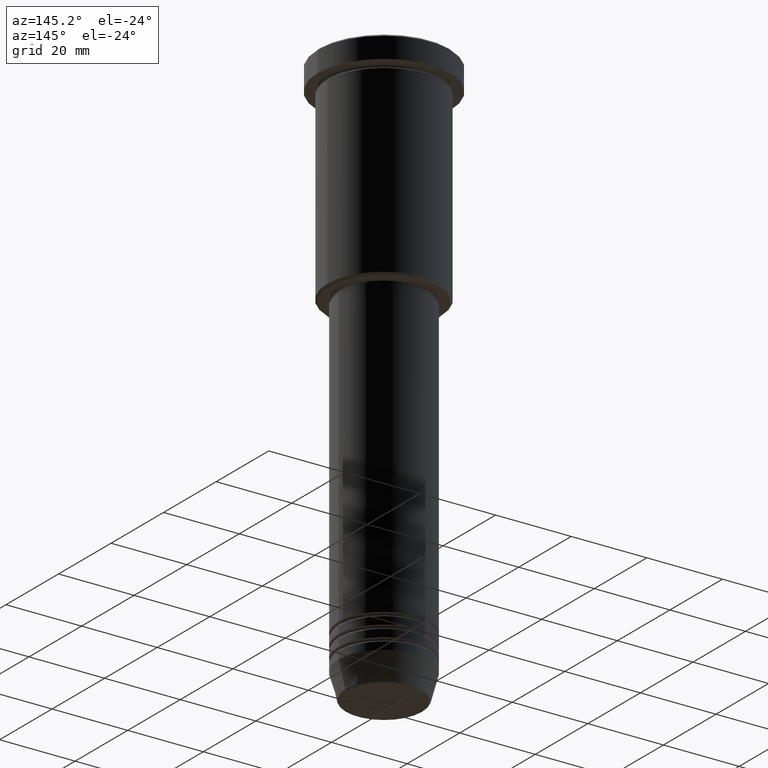
[diagram: clean part render]
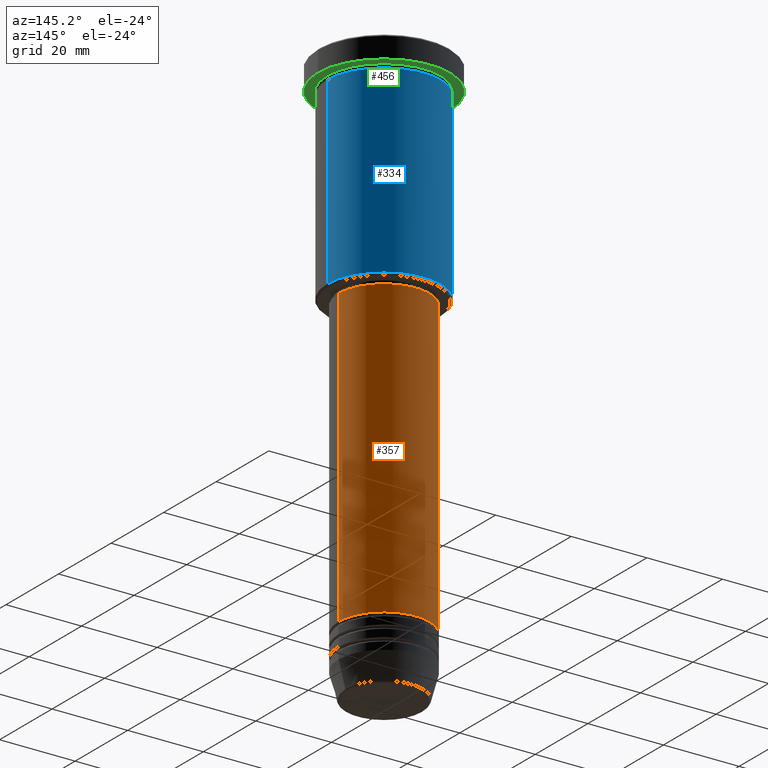
[diagram: same view with three faces highlighted in distinct colors, each labeled with its STEP entity id]
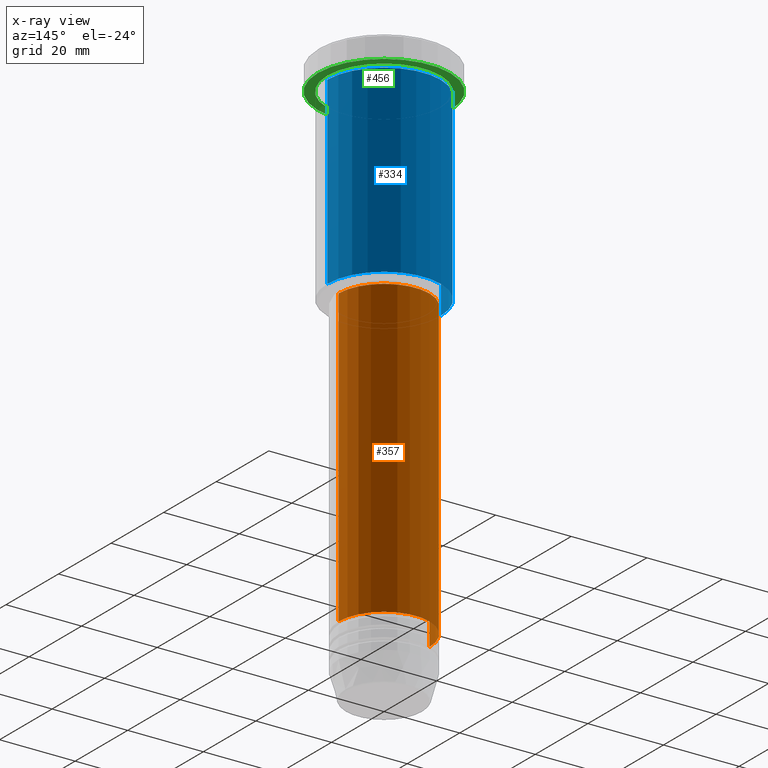
[diagram: x-ray of the same camera — body ghosted, the three highlighted faces saturated]
A machine part, auxiliary view with three faces highlighted in distinct colors.
The next image is the same camera in x-ray (body ghosted, the three faces saturated) — at least one of them is partly hidden behind the body in this view.
Their STEP definitions:

[orange] entity #357 — the highlighted cylindrical surface (partial cylindrical patch) has radius 12 mm, axis along (-0, -0, 1).
#14 = ORIENTED_EDGE ( 'NONE', *, *, #380, .T. ) ;
#26 = VERTEX_POINT ( 'NONE', #306 ) ;
#91 = VERTEX_POINT ( 'NONE', #695 ) ;
#103 = ORIENTED_EDGE ( 'NONE', *, *, #374, .F. ) ;
#114 = CARTESIAN_POINT ( 'NONE',  ( -12.00000000000000000, 1.469576158976823947E-15, 0.000000000000000000 ) ) ;
#179 = CARTESIAN_POINT ( 'NONE',  ( 0.000000000000000000, 0.000000000000000000, 0.000000000000000000 ) ) ;
#194 = AXIS2_PLACEMENT_3D ( 'NONE', #525, #625, #618 ) ;
#213 = AXIS2_PLACEMENT_3D ( 'NONE', #179, #610, #1079 ) ;
#220 = EDGE_LOOP ( 'NONE', ( #14, #367, #103, #702 ) ) ;
#224 = VERTEX_POINT ( 'NONE', #485 ) ;
#284 = LINE ( 'NONE', #114, #387 ) ;
#306 = CARTESIAN_POINT ( 'NONE',  ( -12.00000000000000000, 1.469576158976823947E-15, -57.00000000000001421 ) ) ;
#316 = DIRECTION ( 'NONE',  ( -0.000000000000000000, -0.000000000000000000, 1.000000000000000000 ) ) ;
#357 = ADVANCED_FACE ( 'NONE', ( #999 ), #712, .T. ) ;
#367 = ORIENTED_EDGE ( 'NONE', *, *, #1058, .T. ) ;
#374 = EDGE_CURVE ( 'NONE', #91, #26, #879, .T. ) ;
#380 = EDGE_CURVE ( 'NONE', #224, #946, #1168, .T. ) ;
#387 = VECTOR ( 'NONE', #851, 1000.000000000000000 ) ;
#432 = DIRECTION ( 'NONE',  ( -0.000000000000000000, -0.000000000000000000, 1.000000000000000000 ) ) ;
#457 = VECTOR ( 'NONE', #316, 1000.000000000000000 ) ;
#485 = CARTESIAN_POINT ( 'NONE',  ( 12.00000000000000000, 0.000000000000000000, -134.9999999999999716 ) ) ;
#525 = CARTESIAN_POINT ( 'NONE',  ( 0.000000000000000000, 0.000000000000000000, -57.00000000000001421 ) ) ;
#575 = AXIS2_PLACEMENT_3D ( 'NONE', #815, #432, #898 ) ;
#591 = EDGE_CURVE ( 'NONE', #224, #91, #1145, .T. ) ;
#610 = DIRECTION ( 'NONE',  ( -0.000000000000000000, -0.000000000000000000, 1.000000000000000000 ) ) ;
#618 = DIRECTION ( 'NONE',  ( 1.000000000000000000, 0.000000000000000000, 0.000000000000000000 ) ) ;
#625 = DIRECTION ( 'NONE',  ( -0.000000000000000000, -0.000000000000000000, 1.000000000000000000 ) ) ;
#695 = CARTESIAN_POINT ( 'NONE',  ( 12.00000000000000000, 0.000000000000000000, -57.00000000000001421 ) ) ;
#702 = ORIENTED_EDGE ( 'NONE', *, *, #591, .F. ) ;
#712 = CYLINDRICAL_SURFACE ( 'NONE', #213, 12.00000000000000000 ) ;
#815 = CARTESIAN_POINT ( 'NONE',  ( 0.000000000000000000, 0.000000000000000000, -134.9999999999999716 ) ) ;
#851 = DIRECTION ( 'NONE',  ( -0.000000000000000000, -0.000000000000000000, 1.000000000000000000 ) ) ;
#879 = CIRCLE ( 'NONE', #194, 12.00000000000000000 ) ;
#886 = CARTESIAN_POINT ( 'NONE',  ( -12.00000000000000000, 1.469576158976823947E-15, -134.9999999999999716 ) ) ;
#898 = DIRECTION ( 'NONE',  ( 1.000000000000000000, 0.000000000000000000, 0.000000000000000000 ) ) ;
#946 = VERTEX_POINT ( 'NONE', #886 ) ;
#949 = CARTESIAN_POINT ( 'NONE',  ( 12.00000000000000000, 0.000000000000000000, 0.000000000000000000 ) ) ;
#999 = FACE_OUTER_BOUND ( 'NONE', #220, .T. ) ;
#1058 = EDGE_CURVE ( 'NONE', #946, #26, #284, .T. ) ;
#1079 = DIRECTION ( 'NONE',  ( 1.000000000000000000, 0.000000000000000000, 0.000000000000000000 ) ) ;
#1145 = LINE ( 'NONE', #949, #457 ) ;
#1168 = CIRCLE ( 'NONE', #575, 12.00000000000000000 ) ;

[blue] entity #334 — the highlighted cylindrical surface (partial cylindrical patch) has radius 15 mm, axis along (-0, -0, 1).
#1 = EDGE_CURVE ( 'NONE', #453, #461, #513, .T. ) ;
#22 = LINE ( 'NONE', #1001, #475 ) ;
#79 = CARTESIAN_POINT ( 'NONE',  ( 15.00000000000000000, 0.000000000000000000, -55.49999999999996447 ) ) ;
#105 = CARTESIAN_POINT ( 'NONE',  ( -15.00000000000000000, 1.836970198721029589E-15, 0.000000000000000000 ) ) ;
#115 = DIRECTION ( 'NONE',  ( -0.000000000000000000, -0.000000000000000000, 1.000000000000000000 ) ) ;
#170 = DIRECTION ( 'NONE',  ( -0.000000000000000000, -0.000000000000000000, 1.000000000000000000 ) ) ;
#175 = FACE_OUTER_BOUND ( 'NONE', #227, .T. ) ;
#178 = VERTEX_POINT ( 'NONE', #755 ) ;
#193 = DIRECTION ( 'NONE',  ( -0.000000000000000000, -0.000000000000000000, 1.000000000000000000 ) ) ;
#227 = EDGE_LOOP ( 'NONE', ( #419, #310, #893, #500 ) ) ;
#310 = ORIENTED_EDGE ( 'NONE', *, *, #1098, .T. ) ;
#333 = DIRECTION ( 'NONE',  ( -1.000000000000000000, 0.000000000000000000, 0.000000000000000000 ) ) ;
#334 = ADVANCED_FACE ( 'NONE', ( #175 ), #532, .T. ) ;
#381 = DIRECTION ( 'NONE',  ( -0.000000000000000000, -0.000000000000000000, 1.000000000000000000 ) ) ;
#406 = CIRCLE ( 'NONE', #423, 15.00000000000000000 ) ;
#419 = ORIENTED_EDGE ( 'NONE', *, *, #955, .T. ) ;
#423 = AXIS2_PLACEMENT_3D ( 'NONE', #799, #524, #333 ) ;
#443 = DIRECTION ( 'NONE',  ( 1.000000000000000000, 0.000000000000000000, 0.000000000000000000 ) ) ;
#453 = VERTEX_POINT ( 'NONE', #1104 ) ;
#458 = CARTESIAN_POINT ( 'NONE',  ( -15.00000000000000000, 1.836970198721029589E-15, -6.999999999999995559 ) ) ;
#461 = VERTEX_POINT ( 'NONE', #458 ) ;
#470 = DIRECTION ( 'NONE',  ( 1.000000000000000000, 0.000000000000000000, 0.000000000000000000 ) ) ;
#474 = AXIS2_PLACEMENT_3D ( 'NONE', #592, #115, #470 ) ;
#475 = VECTOR ( 'NONE', #193, 1000.000000000000000 ) ;
#500 = ORIENTED_EDGE ( 'NONE', *, *, #531, .F. ) ;
#513 = CIRCLE ( 'NONE', #474, 15.00000000000000000 ) ;
#524 = DIRECTION ( 'NONE',  ( -0.000000000000000000, -0.000000000000000000, 1.000000000000000000 ) ) ;
#531 = EDGE_CURVE ( 'NONE', #783, #453, #22, .T. ) ;
#532 = CYLINDRICAL_SURFACE ( 'NONE', #780, 15.00000000000000000 ) ;
#592 = CARTESIAN_POINT ( 'NONE',  ( 0.000000000000000000, 0.000000000000000000, -6.999999999999995559 ) ) ;
#755 = CARTESIAN_POINT ( 'NONE',  ( -15.00000000000000000, 1.836970198721029589E-15, -55.49999999999996447 ) ) ;
#780 = AXIS2_PLACEMENT_3D ( 'NONE', #808, #170, #443 ) ;
#783 = VERTEX_POINT ( 'NONE', #79 ) ;
#799 = CARTESIAN_POINT ( 'NONE',  ( 0.000000000000000000, 0.000000000000000000, -55.49999999999996447 ) ) ;
#808 = CARTESIAN_POINT ( 'NONE',  ( 0.000000000000000000, 0.000000000000000000, 0.000000000000000000 ) ) ;
#893 = ORIENTED_EDGE ( 'NONE', *, *, #1, .F. ) ;
#955 = EDGE_CURVE ( 'NONE', #783, #178, #406, .T. ) ;
#1001 = CARTESIAN_POINT ( 'NONE',  ( 15.00000000000000000, 0.000000000000000000, 0.000000000000000000 ) ) ;
#1098 = EDGE_CURVE ( 'NONE', #178, #461, #1108, .T. ) ;
#1104 = CARTESIAN_POINT ( 'NONE',  ( 15.00000000000000000, 0.000000000000000000, -6.999999999999995559 ) ) ;
#1108 = LINE ( 'NONE', #105, #1133 ) ;
#1133 = VECTOR ( 'NONE', #381, 1000.000000000000000 ) ;

[green] entity #456 — the highlighted planar face has unit normal (0, 0, -1).
#58 = VERTEX_POINT ( 'NONE', #753 ) ;
#61 = AXIS2_PLACEMENT_3D ( 'NONE', #502, #1136, #152 ) ;
#66 = CIRCLE ( 'NONE', #1173, 15.00000000000000000 ) ;
#70 = ORIENTED_EDGE ( 'NONE', *, *, #304, .F. ) ;
#81 = AXIS2_PLACEMENT_3D ( 'NONE', #319, #983, #430 ) ;
#121 = CIRCLE ( 'NONE', #139, 17.50000000000000000 ) ;
#139 = AXIS2_PLACEMENT_3D ( 'NONE', #740, #1115, #654 ) ;
#152 = DIRECTION ( 'NONE',  ( 1.000000000000000000, 0.000000000000000000, 0.000000000000000000 ) ) ;
#181 = ORIENTED_EDGE ( 'NONE', *, *, #737, .T. ) ;
#197 = CARTESIAN_POINT ( 'NONE',  ( -15.00000000000000000, 0.000000000000000000, -5.999999999999994671 ) ) ;
#210 = DIRECTION ( 'NONE',  ( -1.000000000000000000, 0.000000000000000000, -0.000000000000000000 ) ) ;
#257 = DIRECTION ( 'NONE',  ( -0.000000000000000000, -0.000000000000000000, 1.000000000000000000 ) ) ;
#259 = EDGE_LOOP ( 'NONE', ( #181, #433 ) ) ;
#286 = DIRECTION ( 'NONE',  ( 0.000000000000000000, 0.000000000000000000, -1.000000000000000000 ) ) ;
#304 = EDGE_CURVE ( 'NONE', #58, #971, #1148, .T. ) ;
#319 = CARTESIAN_POINT ( 'NONE',  ( 0.000000000000000000, 0.000000000000000000, -5.999999999999995559 ) ) ;
#430 = DIRECTION ( 'NONE',  ( -1.000000000000000000, 0.000000000000000000, 0.000000000000000000 ) ) ;
#433 = ORIENTED_EDGE ( 'NONE', *, *, #1015, .T. ) ;
#456 = ADVANCED_FACE ( 'NONE', ( #732, #1096 ), #829, .T. ) ;
#502 = CARTESIAN_POINT ( 'NONE',  ( 0.000000000000000000, 0.000000000000000000, -5.999999999999995559 ) ) ;
#561 = EDGE_LOOP ( 'NONE', ( #1105, #70 ) ) ;
#593 = AXIS2_PLACEMENT_3D ( 'NONE', #746, #286, #210 ) ;
#617 = DIRECTION ( 'NONE',  ( -1.000000000000000000, 0.000000000000000000, 0.000000000000000000 ) ) ;
#654 = DIRECTION ( 'NONE',  ( 1.000000000000000000, 0.000000000000000000, 0.000000000000000000 ) ) ;
#732 = FACE_BOUND ( 'NONE', #259, .T. ) ;
#737 = EDGE_CURVE ( 'NONE', #881, #1157, #1090, .T. ) ;
#740 = CARTESIAN_POINT ( 'NONE',  ( 0.000000000000000000, 0.000000000000000000, -5.999999999999995559 ) ) ;
#746 = CARTESIAN_POINT ( 'NONE',  ( 0.000000000000000000, 17.50000000000000000, -5.999999999999995559 ) ) ;
#753 = CARTESIAN_POINT ( 'NONE',  ( -17.50000000000000000, 2.143131898507868248E-15, -5.999999999999995559 ) ) ;
#829 = PLANE ( 'NONE',  #593 ) ;
#881 = VERTEX_POINT ( 'NONE', #197 ) ;
#968 = CARTESIAN_POINT ( 'NONE',  ( 15.00000000000000000, 1.836970198721029589E-15, -5.999999999999994671 ) ) ;
#971 = VERTEX_POINT ( 'NONE', #1154 ) ;
#983 = DIRECTION ( 'NONE',  ( -0.000000000000000000, -0.000000000000000000, 1.000000000000000000 ) ) ;
#1015 = EDGE_CURVE ( 'NONE', #1157, #881, #66, .T. ) ;
#1070 = CARTESIAN_POINT ( 'NONE',  ( 0.000000000000000000, 0.000000000000000000, -5.999999999999995559 ) ) ;
#1090 = CIRCLE ( 'NONE', #81, 15.00000000000000000 ) ;
#1096 = FACE_OUTER_BOUND ( 'NONE', #561, .T. ) ;
#1105 = ORIENTED_EDGE ( 'NONE', *, *, #1107, .F. ) ;
#1107 = EDGE_CURVE ( 'NONE', #971, #58, #121, .T. ) ;
#1115 = DIRECTION ( 'NONE',  ( -0.000000000000000000, -0.000000000000000000, 1.000000000000000000 ) ) ;
#1136 = DIRECTION ( 'NONE',  ( -0.000000000000000000, -0.000000000000000000, 1.000000000000000000 ) ) ;
#1148 = CIRCLE ( 'NONE', #61, 17.50000000000000000 ) ;
#1154 = CARTESIAN_POINT ( 'NONE',  ( 17.50000000000000000, 0.000000000000000000, -5.999999999999995559 ) ) ;
#1157 = VERTEX_POINT ( 'NONE', #968 ) ;
#1173 = AXIS2_PLACEMENT_3D ( 'NONE', #1070, #257, #617 ) ;